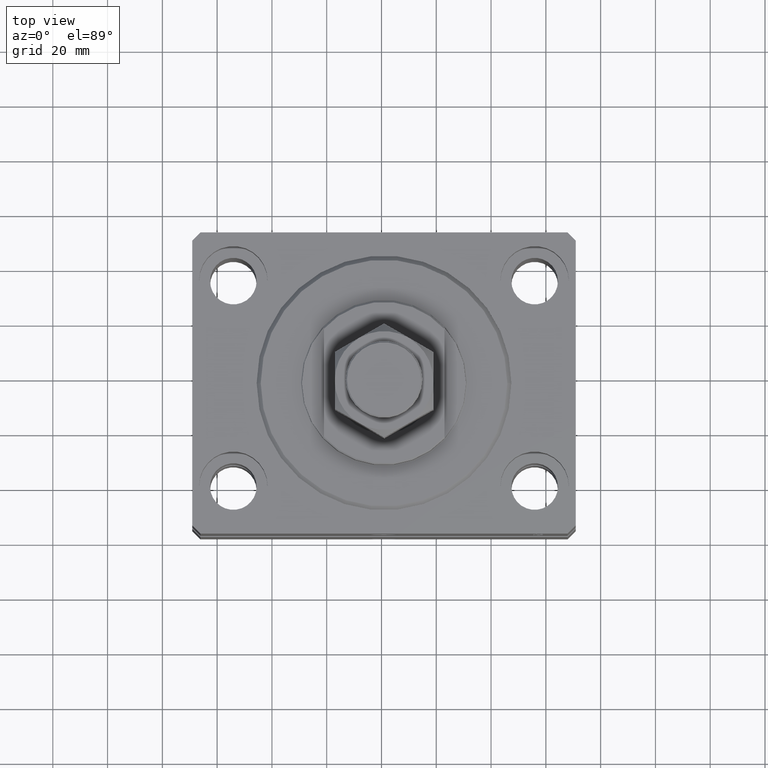
[diagram: clean part render]
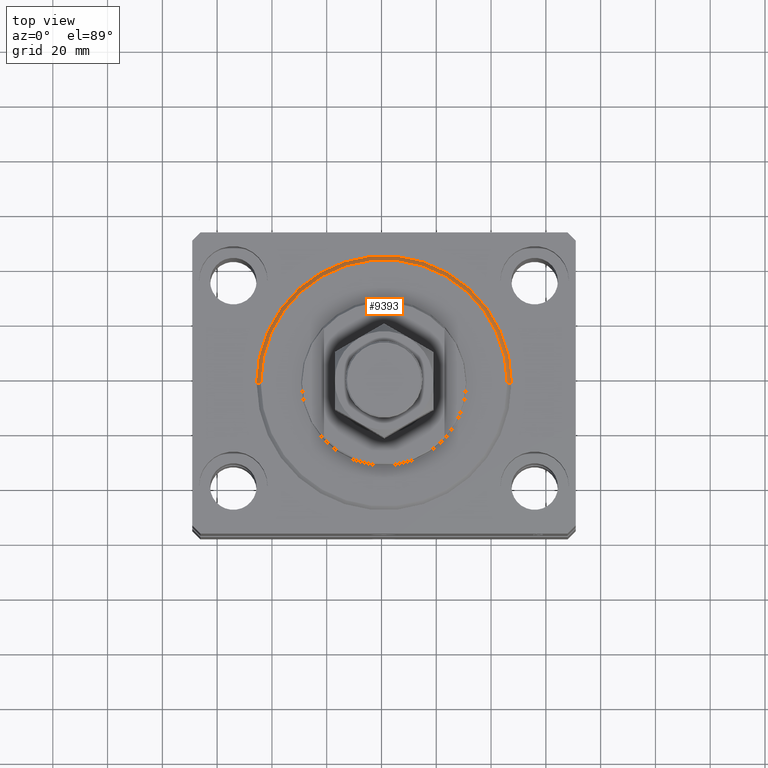
[diagram: same view with one face highlighted and labeled with its STEP entity id]
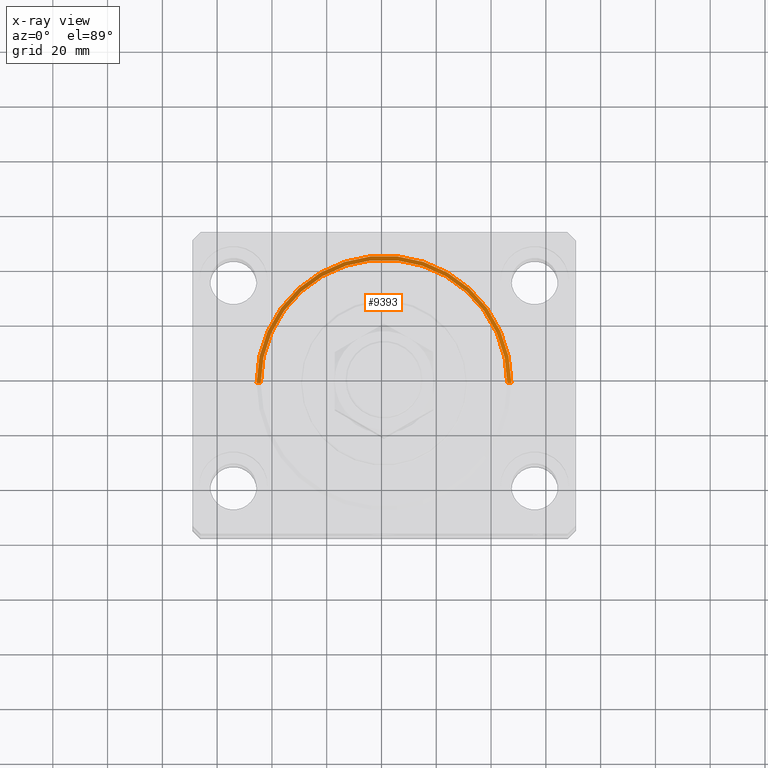
[diagram: x-ray of the same camera — body ghosted, the highlighted face saturated]
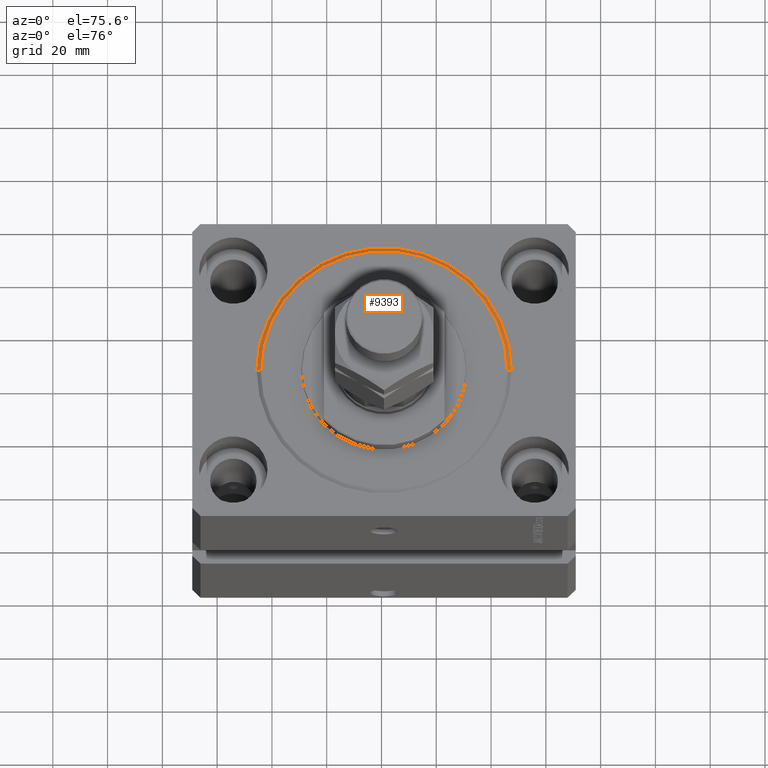
[diagram: same view with one face highlighted and labeled with its STEP entity id]
A machine part, top view. The second image highlights one B-rep face of the part: STEP entity #9393.
The next image is the same camera in x-ray: the body ghosted, the highlighted face saturated — about 0% of this face is hidden behind the body in this view.
A second angle (auxiliary view) of the same face is appended — the face is thin or edge-on in the first view.
In plain terms, the highlighted conical surface has half-angle 45 deg.
Its self-contained STEP definition (entity closure, byte-faithful):
#254 = VERTEX_POINT ( 'NONE', #40297 ) ;
#544 = EDGE_CURVE ( 'NONE', #254, #24367, #21873, .T. ) ;
#3578 = ORIENTED_EDGE ( 'NONE', *, *, #544, .T. ) ;
#4460 = ORIENTED_EDGE ( 'NONE', *, *, #35750, .F. ) ;
#4480 = CARTESIAN_POINT ( 'NONE',  ( 46.50000000000000000, 0.000000000000000000, 1.499999999999980460 ) ) ;
#4974 = VERTEX_POINT ( 'NONE', #42006 ) ;
#6836 = FACE_OUTER_BOUND ( 'NONE', #41571, .T. ) ;
#8563 = DIRECTION ( 'NONE',  ( 0.7071067811865524577, 0.000000000000000000, 0.7071067811865425767 ) ) ;
#9393 = ADVANCED_FACE ( 'NONE', ( #6836 ), #35082, .T. ) ;
#9957 = CIRCLE ( 'NONE', #36958, 46.50000000000000000 ) ;
#12295 = CIRCLE ( 'NONE', #43938, 45.00000000000000000 ) ;
#14070 = DIRECTION ( 'NONE',  ( -0.000000000000000000, -0.000000000000000000, 1.000000000000000000 ) ) ;
#14273 = CARTESIAN_POINT ( 'NONE',  ( 0.000000000000000000, 0.000000000000000000, 1.499999999999980460 ) ) ;
#16433 = VECTOR ( 'NONE', #26202, 1000.000000000000114 ) ;
#17731 = VERTEX_POINT ( 'NONE', #20282 ) ;
#20268 = ORIENTED_EDGE ( 'NONE', *, *, #23368, .F. ) ;
#20282 = CARTESIAN_POINT ( 'NONE',  ( 46.50000000000000000, 5.694607616035192278E-15, 1.499999999999980460 ) ) ;
#21873 = LINE ( 'NONE', #36603, #16433 ) ;
#23368 = EDGE_CURVE ( 'NONE', #4974, #17731, #41424, .T. ) ;
#24213 = DIRECTION ( 'NONE',  ( 1.000000000000000000, 0.000000000000000000, 0.000000000000000000 ) ) ;
#24367 = VERTEX_POINT ( 'NONE', #28094 ) ;
#26202 = DIRECTION ( 'NONE',  ( -0.7071067811865524577, 8.659560562354993255E-17, 0.7071067811865425767 ) ) ;
#28094 = CARTESIAN_POINT ( 'NONE',  ( -46.50000000000000000, 0.000000000000000000, 1.499999999999980460 ) ) ;
#28152 = CARTESIAN_POINT ( 'NONE',  ( 0.000000000000000000, 0.000000000000000000, 0.000000000000000000 ) ) ;
#28270 = DIRECTION ( 'NONE',  ( 1.000000000000000000, 0.000000000000000000, 0.000000000000000000 ) ) ;
#28941 = ORIENTED_EDGE ( 'NONE', *, *, #35934, .F. ) ;
#32298 = VECTOR ( 'NONE', #8563, 1000.000000000000114 ) ;
#35082 = CONICAL_SURFACE ( 'NONE', #40494, 46.50000000000000000, 0.7853981633974552734 ) ;
#35164 = DIRECTION ( 'NONE',  ( -0.000000000000000000, -0.000000000000000000, -1.000000000000000000 ) ) ;
#35750 = EDGE_CURVE ( 'NONE', #17731, #24367, #9957, .T. ) ;
#35934 = EDGE_CURVE ( 'NONE', #254, #4974, #12295, .T. ) ;
#36603 = CARTESIAN_POINT ( 'NONE',  ( -46.50000000000000000, 5.694607616035192278E-15, 1.499999999999980460 ) ) ;
#36958 = AXIS2_PLACEMENT_3D ( 'NONE', #14273, #39888, #28270 ) ;
#39534 = DIRECTION ( 'NONE',  ( 1.000000000000000000, 0.000000000000000000, 0.000000000000000000 ) ) ;
#39888 = DIRECTION ( 'NONE',  ( -0.000000000000000000, -0.000000000000000000, 1.000000000000000000 ) ) ;
#39921 = CARTESIAN_POINT ( 'NONE',  ( 0.000000000000000000, 0.000000000000000000, 1.499999999999980460 ) ) ;
#40297 = CARTESIAN_POINT ( 'NONE',  ( -45.00000000000000000, 5.602759106099140917E-15, 0.000000000000000000 ) ) ;
#40494 = AXIS2_PLACEMENT_3D ( 'NONE', #39921, #14070, #24213 ) ;
#41424 = LINE ( 'NONE', #4480, #32298 ) ;
#41571 = EDGE_LOOP ( 'NONE', ( #28941, #3578, #4460, #20268 ) ) ;
#42006 = CARTESIAN_POINT ( 'NONE',  ( 45.00000000000000000, 0.000000000000000000, 0.000000000000000000 ) ) ;
#43938 = AXIS2_PLACEMENT_3D ( 'NONE', #28152, #35164, #39534 ) ;